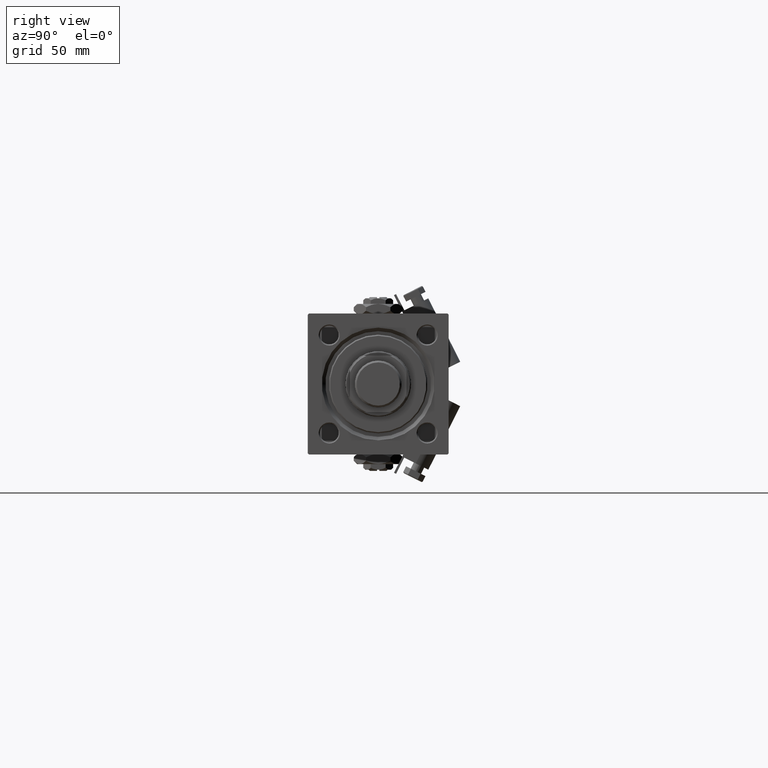
[diagram: clean part render]
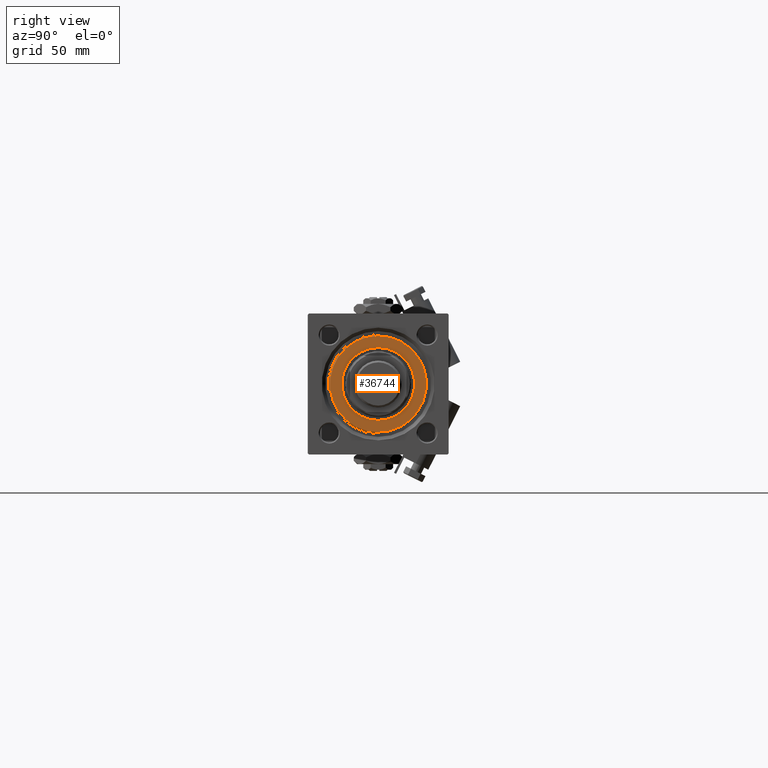
[diagram: same view with one face highlighted and labeled with its STEP entity id]
A machine part, right view. The second image highlights one B-rep face of the part: STEP entity #36744.
In plain terms, the highlighted planar face has unit normal (1, 0, 0).
Its self-contained STEP definition (entity closure, byte-faithful):
#1867 = AXIS2_PLACEMENT_3D ( 'NONE', #41560, #7303, #16260 ) ;
#2684 = CIRCLE ( 'NONE', #24488, 15.50000000000000000 ) ;
#3427 = CARTESIAN_POINT ( 'NONE',  ( 20.49999999999999645, 2.541142108230757480E-15, 40.70000000000000284 ) ) ;
#4048 = AXIS2_PLACEMENT_3D ( 'NONE', #8151, #32084, #53311 ) ;
#5614 = EDGE_LOOP ( 'NONE', ( #23570, #40377 ) ) ;
#6821 = CARTESIAN_POINT ( 'NONE',  ( 0.000000000000000000, 0.000000000000000000, 40.70000000000000284 ) ) ;
#7073 = CARTESIAN_POINT ( 'NONE',  ( -15.50000000000000000, 1.898202538678397557E-15, 40.70000000000000284 ) ) ;
#7303 = DIRECTION ( 'NONE',  ( 0.000000000000000000, 0.000000000000000000, 1.000000000000000000 ) ) ;
#7571 = AXIS2_PLACEMENT_3D ( 'NONE', #6821, #28008, #48682 ) ;
#8151 = CARTESIAN_POINT ( 'NONE',  ( 0.000000000000000000, 0.000000000000000000, 40.70000000000000284 ) ) ;
#12193 = PLANE ( 'NONE',  #1867 ) ;
#12909 = VERTEX_POINT ( 'NONE', #43967 ) ;
#16238 = CARTESIAN_POINT ( 'NONE',  ( -20.49999999999999645, 0.000000000000000000, 40.70000000000000284 ) ) ;
#16260 = DIRECTION ( 'NONE',  ( 1.000000000000000000, 0.000000000000000000, -0.000000000000000000 ) ) ;
#16493 = DIRECTION ( 'NONE',  ( 0.000000000000000000, 0.000000000000000000, 1.000000000000000000 ) ) ;
#19809 = FACE_BOUND ( 'NONE', #32952, .T. ) ;
#21275 = EDGE_CURVE ( 'NONE', #50778, #40512, #29151, .T. ) ;
#21357 = DIRECTION ( 'NONE',  ( 1.000000000000000000, 0.000000000000000000, 0.000000000000000000 ) ) ;
#23570 = ORIENTED_EDGE ( 'NONE', *, *, #21275, .T. ) ;
#23877 = EDGE_CURVE ( 'NONE', #40512, #50778, #24065, .T. ) ;
#24065 = CIRCLE ( 'NONE', #7571, 20.49999999999999645 ) ;
#24488 = AXIS2_PLACEMENT_3D ( 'NONE', #52000, #27228, #43820 ) ;
#26733 = EDGE_CURVE ( 'NONE', #45125, #12909, #30074, .T. ) ;
#27228 = DIRECTION ( 'NONE',  ( 0.000000000000000000, 0.000000000000000000, 1.000000000000000000 ) ) ;
#28008 = DIRECTION ( 'NONE',  ( 0.000000000000000000, 0.000000000000000000, 1.000000000000000000 ) ) ;
#29151 = CIRCLE ( 'NONE', #50007, 20.49999999999999645 ) ;
#30074 = CIRCLE ( 'NONE', #4048, 15.50000000000000000 ) ;
#32084 = DIRECTION ( 'NONE',  ( 0.000000000000000000, 0.000000000000000000, 1.000000000000000000 ) ) ;
#32952 = EDGE_LOOP ( 'NONE', ( #39442, #37394 ) ) ;
#36744 = ADVANCED_FACE ( 'NONE', ( #19809, #41018 ), #12193, .T. ) ;
#37394 = ORIENTED_EDGE ( 'NONE', *, *, #26733, .F. ) ;
#38729 = EDGE_CURVE ( 'NONE', #12909, #45125, #2684, .T. ) ;
#39442 = ORIENTED_EDGE ( 'NONE', *, *, #38729, .F. ) ;
#40377 = ORIENTED_EDGE ( 'NONE', *, *, #23877, .T. ) ;
#40512 = VERTEX_POINT ( 'NONE', #3427 ) ;
#41018 = FACE_OUTER_BOUND ( 'NONE', #5614, .T. ) ;
#41560 = CARTESIAN_POINT ( 'NONE',  ( 0.000000000000000000, 0.000000000000000000, 40.70000000000000284 ) ) ;
#43820 = DIRECTION ( 'NONE',  ( 1.000000000000000000, 0.000000000000000000, 0.000000000000000000 ) ) ;
#43967 = CARTESIAN_POINT ( 'NONE',  ( 15.50000000000000000, 0.000000000000000000, 40.70000000000000284 ) ) ;
#45125 = VERTEX_POINT ( 'NONE', #7073 ) ;
#48682 = DIRECTION ( 'NONE',  ( 1.000000000000000000, 0.000000000000000000, 0.000000000000000000 ) ) ;
#49936 = CARTESIAN_POINT ( 'NONE',  ( 0.000000000000000000, 0.000000000000000000, 40.70000000000000284 ) ) ;
#50007 = AXIS2_PLACEMENT_3D ( 'NONE', #49936, #16493, #21357 ) ;
#50778 = VERTEX_POINT ( 'NONE', #16238 ) ;
#52000 = CARTESIAN_POINT ( 'NONE',  ( 0.000000000000000000, 0.000000000000000000, 40.70000000000000284 ) ) ;
#53311 = DIRECTION ( 'NONE',  ( 1.000000000000000000, 0.000000000000000000, 0.000000000000000000 ) ) ;